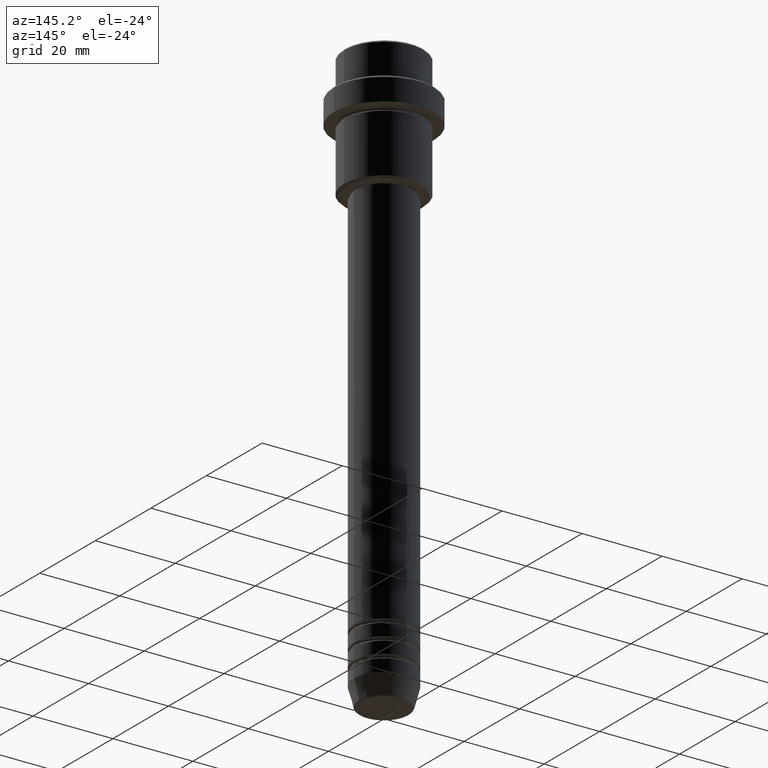
[diagram: clean part render]
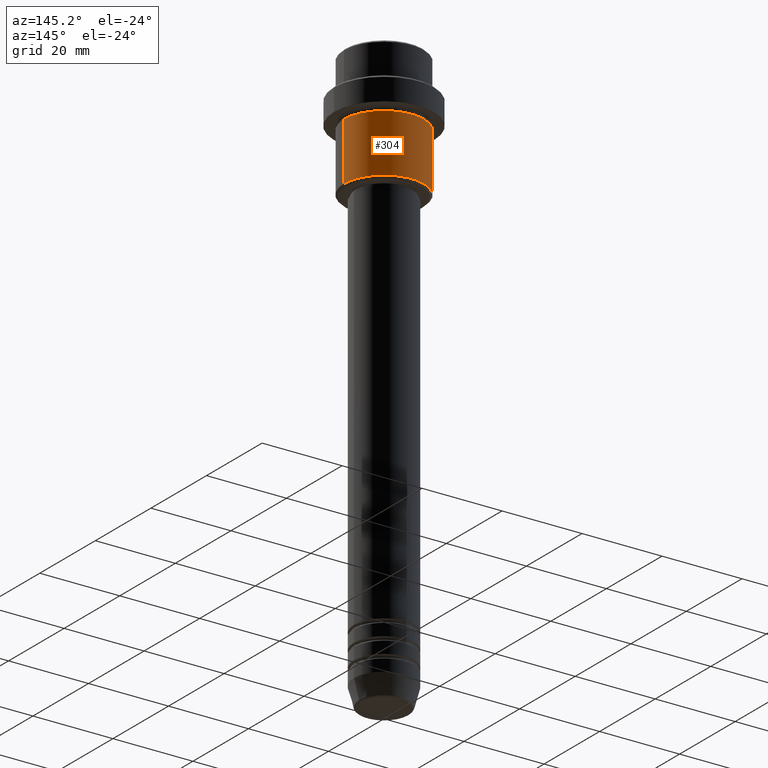
[diagram: same view with one face highlighted and labeled with its STEP entity id]
A machine part, auxiliary view. The second image highlights one B-rep face of the part: STEP entity #304.
In plain terms, the highlighted cylindrical surface (partial cylindrical patch) has radius 10 mm, axis along (-0, -0, 1).
Its self-contained STEP definition (entity closure, byte-faithful):
#13 = CIRCLE ( 'NONE', #193, 10.00000000000000000 ) ;
#31 = CARTESIAN_POINT ( 'NONE',  ( 10.00000000000000000, 0.000000000000000000, -30.49999999999997868 ) ) ;
#42 = DIRECTION ( 'NONE',  ( -0.000000000000000000, -0.000000000000000000, 1.000000000000000000 ) ) ;
#47 = CARTESIAN_POINT ( 'NONE',  ( 0.000000000000000000, 0.000000000000000000, -16.00000000000000000 ) ) ;
#109 = VERTEX_POINT ( 'NONE', #676 ) ;
#124 = CARTESIAN_POINT ( 'NONE',  ( 0.000000000000000000, 0.000000000000000000, -30.49999999999997868 ) ) ;
#166 = FACE_OUTER_BOUND ( 'NONE', #613, .T. ) ;
#193 = AXIS2_PLACEMENT_3D ( 'NONE', #124, #1010, #559 ) ;
#292 = CARTESIAN_POINT ( 'NONE',  ( 10.00000000000000000, 0.000000000000000000, -16.00000000000000000 ) ) ;
#304 = ADVANCED_FACE ( 'NONE', ( #166 ), #1241, .T. ) ;
#322 = ORIENTED_EDGE ( 'NONE', *, *, #730, .F. ) ;
#430 = CARTESIAN_POINT ( 'NONE',  ( 10.00000000000000000, 0.000000000000000000, 0.000000000000000000 ) ) ;
#480 = AXIS2_PLACEMENT_3D ( 'NONE', #491, #1165, #920 ) ;
#491 = CARTESIAN_POINT ( 'NONE',  ( 0.000000000000000000, 0.000000000000000000, 0.000000000000000000 ) ) ;
#492 = VERTEX_POINT ( 'NONE', #292 ) ;
#557 = DIRECTION ( 'NONE',  ( -0.000000000000000000, -0.000000000000000000, 1.000000000000000000 ) ) ;
#559 = DIRECTION ( 'NONE',  ( -1.000000000000000000, 0.000000000000000000, 0.000000000000000000 ) ) ;
#613 = EDGE_LOOP ( 'NONE', ( #1208, #680, #322, #949 ) ) ;
#633 = VERTEX_POINT ( 'NONE', #31 ) ;
#658 = LINE ( 'NONE', #430, #667 ) ;
#667 = VECTOR ( 'NONE', #557, 1000.000000000000000 ) ;
#676 = CARTESIAN_POINT ( 'NONE',  ( -10.00000000000000000, 1.224646799147353256E-15, -30.49999999999997868 ) ) ;
#680 = ORIENTED_EDGE ( 'NONE', *, *, #796, .T. ) ;
#690 = AXIS2_PLACEMENT_3D ( 'NONE', #47, #42, #930 ) ;
#730 = EDGE_CURVE ( 'NONE', #492, #1359, #738, .T. ) ;
#738 = CIRCLE ( 'NONE', #690, 10.00000000000000000 ) ;
#796 = EDGE_CURVE ( 'NONE', #109, #1359, #1198, .T. ) ;
#820 = EDGE_CURVE ( 'NONE', #633, #492, #658, .T. ) ;
#920 = DIRECTION ( 'NONE',  ( 1.000000000000000000, 0.000000000000000000, 0.000000000000000000 ) ) ;
#930 = DIRECTION ( 'NONE',  ( 1.000000000000000000, 0.000000000000000000, 0.000000000000000000 ) ) ;
#949 = ORIENTED_EDGE ( 'NONE', *, *, #820, .F. ) ;
#987 = CARTESIAN_POINT ( 'NONE',  ( -10.00000000000000000, 1.224646799147353256E-15, 0.000000000000000000 ) ) ;
#1010 = DIRECTION ( 'NONE',  ( -0.000000000000000000, -0.000000000000000000, 1.000000000000000000 ) ) ;
#1043 = VECTOR ( 'NONE', #1101, 1000.000000000000000 ) ;
#1096 = CARTESIAN_POINT ( 'NONE',  ( -10.00000000000000000, 1.224646799147353256E-15, -16.00000000000000000 ) ) ;
#1101 = DIRECTION ( 'NONE',  ( -0.000000000000000000, -0.000000000000000000, 1.000000000000000000 ) ) ;
#1165 = DIRECTION ( 'NONE',  ( -0.000000000000000000, -0.000000000000000000, 1.000000000000000000 ) ) ;
#1198 = LINE ( 'NONE', #987, #1043 ) ;
#1208 = ORIENTED_EDGE ( 'NONE', *, *, #1334, .T. ) ;
#1241 = CYLINDRICAL_SURFACE ( 'NONE', #480, 10.00000000000000000 ) ;
#1334 = EDGE_CURVE ( 'NONE', #633, #109, #13, .T. ) ;
#1359 = VERTEX_POINT ( 'NONE', #1096 ) ;